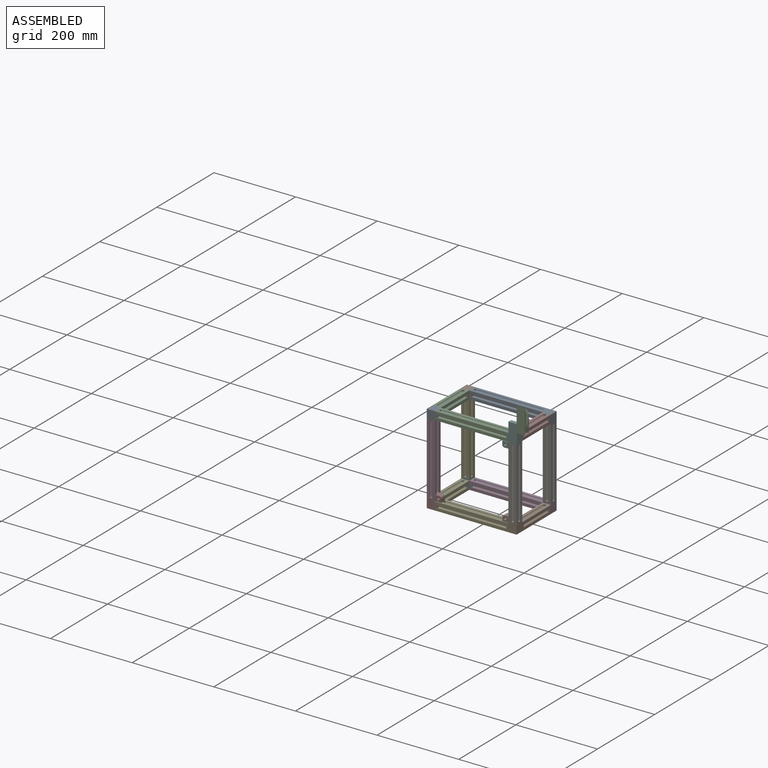
[diagram: assembled view]
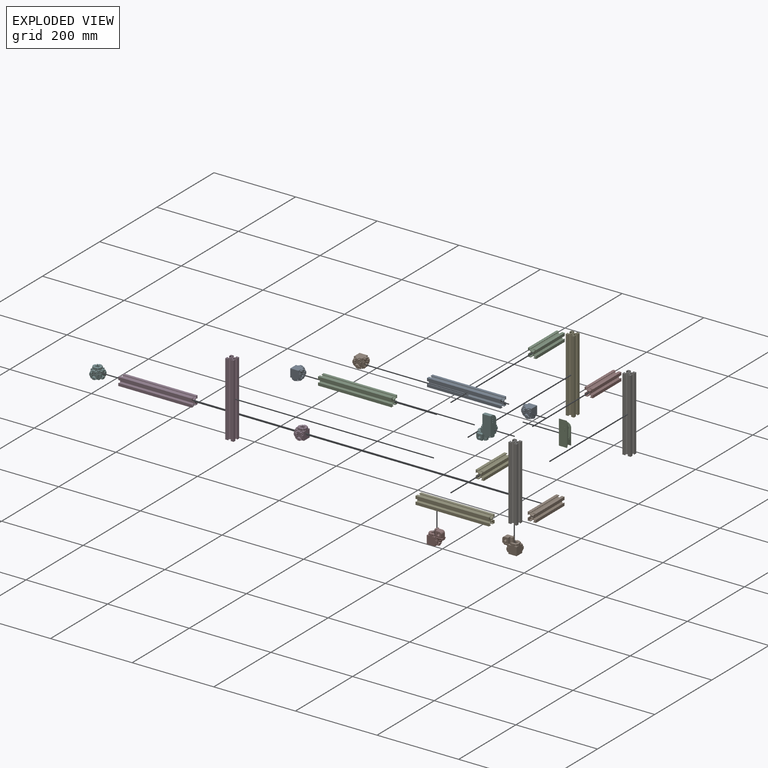
[diagram: exploded view]
GUIDED TOUR — MATED ASSEMBLY WITH SUBASSEMBLIES (Onshape document 5849f3f1650a1f40a9df41c4, AutoMate assembly 5849f3f1650a1f40a9df41c4_9b9f83bd9ccc5ef26c522021_66006c5635cd6fd07002afb1_default)

This assembly has 24 component occurrences arranged in 21 top-level units: 20 individual components plus 1 subassembly (S0). The tour has two levels: first the top level, where each subassembly is treated as one rigid unit; then each subassembly is toured internally in its own section (nesting deeper than one subassembly level is flattened into its subassembly's section).

Components are labeled P0..P23 across the whole record; subassembly units are labeled S0..S0. A mate is a constraint between two units; its type names the relative motion it leaves free:
  FASTENED — locks the two components together rigidly (no relative motion).
Axis/direction vectors are unit vectors and 'through' points are millimeter coordinates, both in the assembly's world frame.

TOP-LEVEL MATES (between units; each subassembly's internal mates are listed in its own section)
  1. FASTENED "Fastened 3": P4 <-> P7, direction (-1.000, 0.000, 0.000) through (-31.31, -10.00, -54.85) mm
  2. FASTENED "Fastened 9": P15 <-> P16, direction (0.000, -1.000, 0.000) through (-31.31, 110.00, 125.15) mm
  3. FASTENED "Fastened 15": P9 <-> P21, direction (1.000, 0.000, 0.000) through (-211.31, -10.00, 145.15) mm
  4. FASTENED "Fastened 11": P17 <-> P16, direction (0.000, -1.000, 0.000) through (-31.31, 110.00, 145.15) mm
  5. FASTENED "Fastened 4": P1 <-> P4, direction (0.000, -1.000, 0.000) through (-31.31, 10.00, -54.85) mm
  6. FASTENED "Fastened 12": P5 <-> P7, direction (0.000, 0.000, -1.000) through (-11.31, 10.00, 125.15) mm
  7. FASTENED "Fastened 17": P3 <-> P22, direction (-1.000, 0.000, 0.000) through (-31.31, 130.00, -74.85) mm
  8. FASTENED "Fastened 19": P18 <-> P17, direction (1.000, 0.000, 0.000) through (-211.31, 130.00, 145.15) mm
  9. FASTENED "Fastened 14": P8 <-> P12, direction (0.000, 0.000, 1.000) through (-231.31, -10.00, -54.85) mm
  10. FASTENED "Fastened 2": P21 <-> P12, direction (1.000, 0.000, 0.000) through (-211.31, -10.00, 125.15) mm
  11. FASTENED "Fastened 7": P4 <-> P23, direction (0.000, 1.000, 0.000) through (-211.31, 10.00, -54.85) mm
  12. FASTENED "Fastened 10": P22 <-> P23, direction (0.000, -1.000, 0.000) through (-211.31, 110.00, -74.85) mm
  13. FASTENED "Fastened 16": S0 <-> P5, direction (1.000, 0.000, 0.000) through (-11.31, -2.50, 167.65) mm
  14. FASTENED "Fastened 6": P11 <-> P21, direction (0.000, -1.000, 0.000) through (-211.31, 10.00, 125.15) mm
  15. FASTENED "Fastened 20": P0 <-> P17, direction (-1.000, 0.000, 0.000) through (-31.31, 130.00, 145.15) mm
  16. FASTENED "Fastened 18": P14 <-> P22, direction (1.000, 0.000, 0.000) through (-211.31, 130.00, -74.85) mm
  17. FASTENED "Fastened 8": P13 <-> P11, direction (0.000, -1.000, 0.000) through (-211.31, 110.00, 125.15) mm
  18. FASTENED "Fastened 1": P21 <-> P7, direction (1.000, 0.000, 0.000) through (-31.31, -10.00, 125.15) mm
  19. FASTENED "Fastened 5": P16 <-> P7, direction (0.000, -1.000, 0.000) through (-31.31, 10.00, 125.15) mm
  20. FASTENED "Fastened 13": P10 <-> P7, direction (0.000, 0.000, 1.000) through (-11.31, -10.00, -54.85) mm

TOP-LEVEL ASSEMBLY ORDER
  1. P7 — the base component [order heuristic]
  2. P4 — core [order heuristic]
  3. P0 — core [order heuristic]
  4. P10 — core [order heuristic]
  5. P16 — core [order heuristic]
  6. P5 — core [order heuristic]
  7. P1 — core [order heuristic]
  8. P17 — core [order heuristic]
  9. P11 — core [order heuristic]
  10. P21 — core [order heuristic]
  11. P15 — core [order heuristic]
  12. P9 — core [order heuristic]
  13. P23 — core [order heuristic]
  14. P18 — core [order heuristic]
  15. P8 — core [order heuristic]
  16. P13 — core [order heuristic]
  17. P12 — core [order heuristic]
  18. P22 — core [order heuristic]
  19. P14 — core [order heuristic]
  20. P3 — core [order heuristic]
  21. S0 [order verified]
Order-tag legend:
  [order verified] — this step's position reverses a verified removal order: the component was checked to insert without passing through the ones already placed.
  [order heuristic] — the first 20 components form the assembly's core: parts whose collision-free extraction could not be verified, listed in mate-graph order.

Of the 24 component occurrences, 15 carry the full construction recipe — the FeatureScript program that regenerates the part's solid from scratch; the rest are supplied as boundary geometry only. Each toured unit is shown spotlighted twice — assembled, then exploded with a leader line back to its socket (green = recipe-attached component, orange = geometry-only, blue = subassembly unit; the rest desaturated gray).
NOTE — document 2 of 2 of this assembly tour. The two overview renders and the header above are repeated from document 1; the component sections below continue where the previous document stopped.
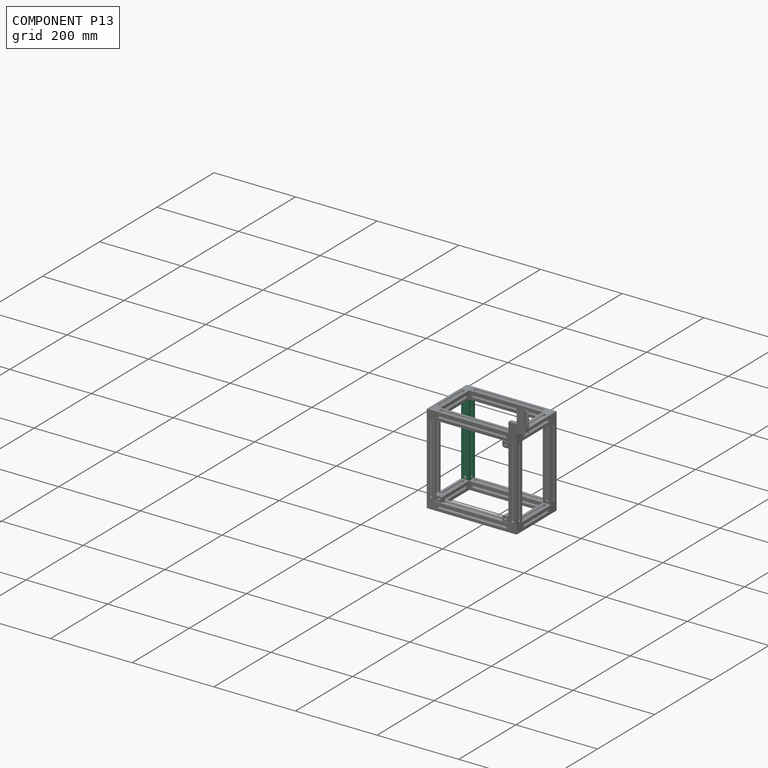
[diagram: component P13 — assembled]
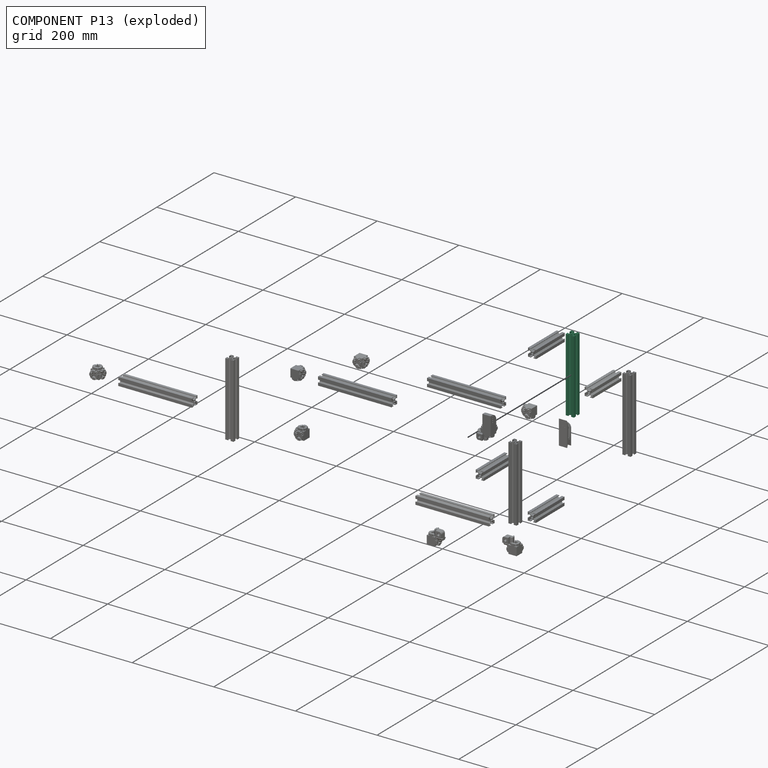
[diagram: component P13 — exploded]
COMPONENT P13 — same part as P4 (CADFS 00642222); its construction recipe is shown at P4.
Held by: FASTENED mate "Fastened 8" to P11.
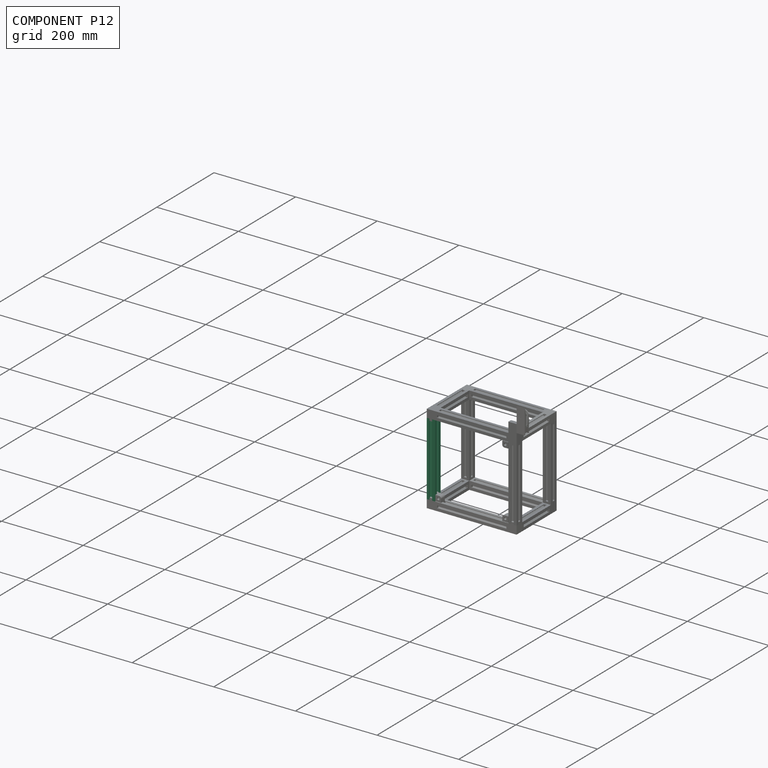
[diagram: component P12 — assembled]
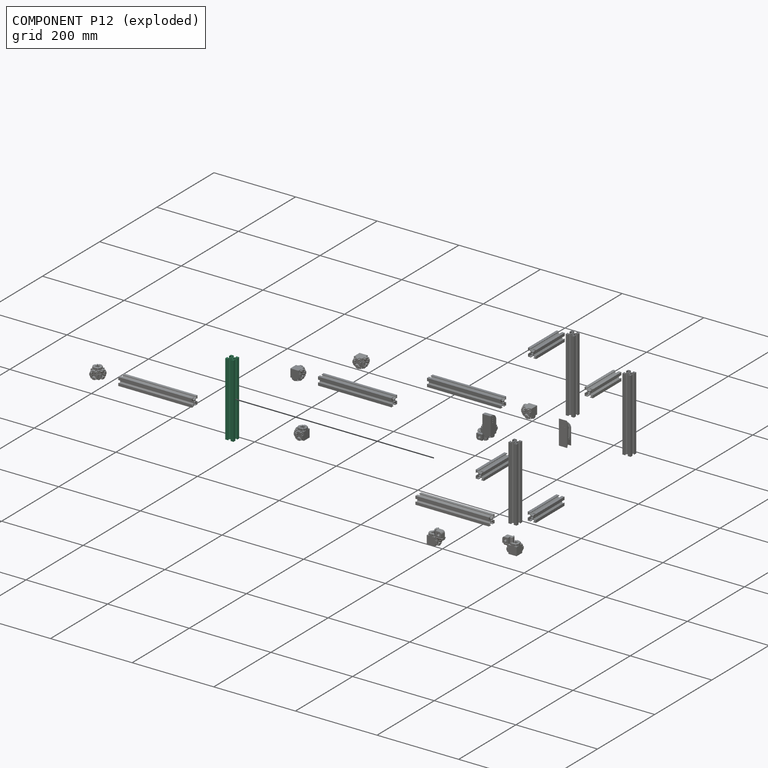
[diagram: component P12 — exploded]
COMPONENT P12 — same part as P4 (CADFS 00642222); its construction recipe is shown at P4.
Held by: FASTENED mate "Fastened 14" to P8; FASTENED mate "Fastened 2" to P21.
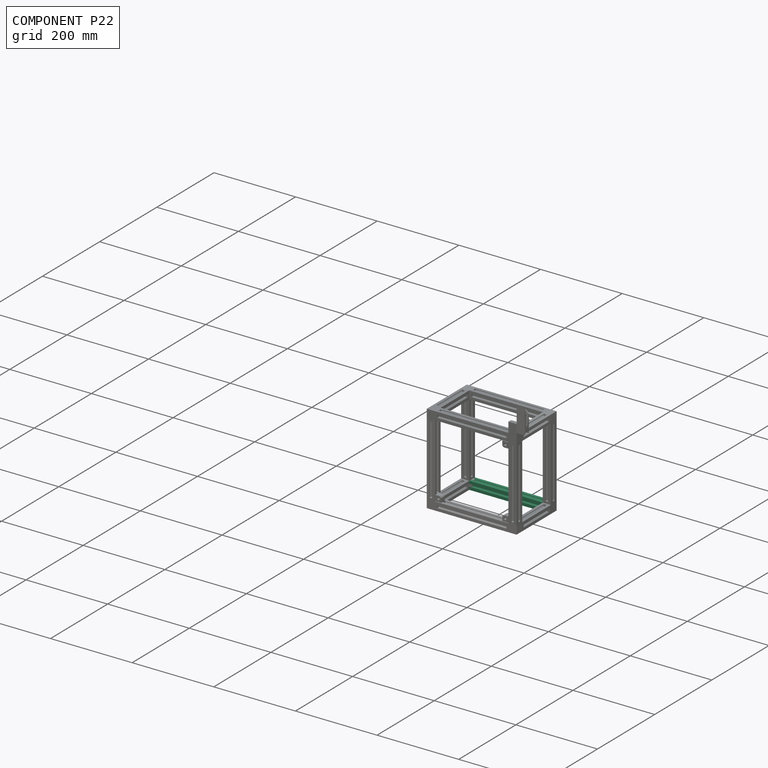
[diagram: component P22 — assembled]
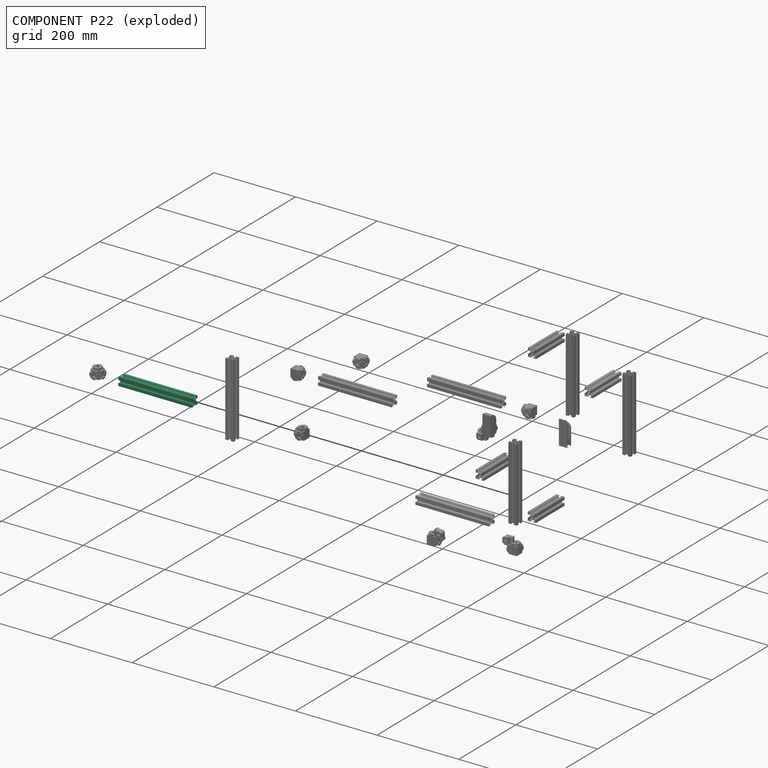
[diagram: component P22 — exploded]
COMPONENT P22 — same part as P4 (CADFS 00642222); its construction recipe is shown at P4.
Held by: FASTENED mate "Fastened 17" to P3; FASTENED mate "Fastened 10" to P23; FASTENED mate "Fastened 18" to P14.
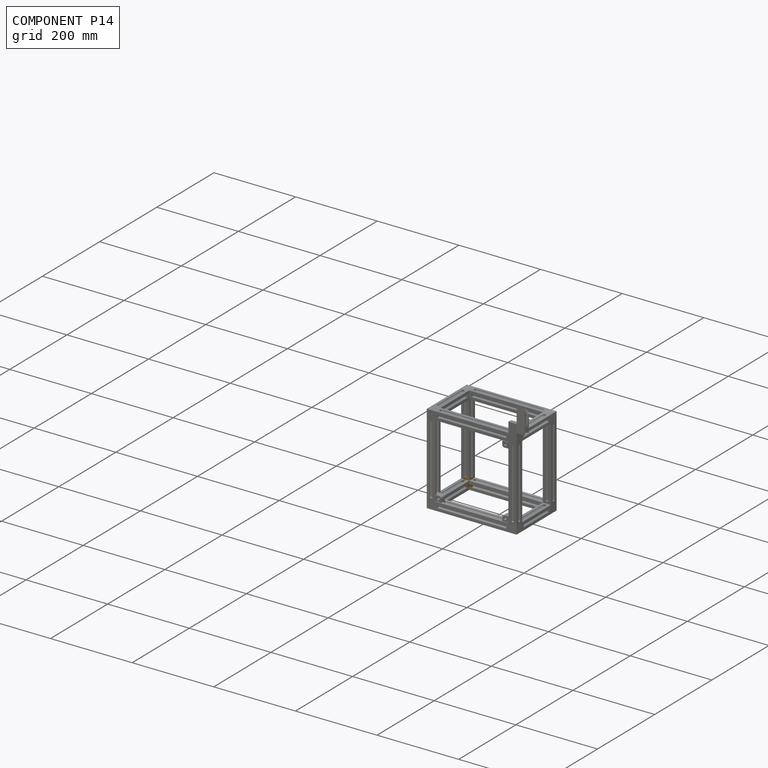
[diagram: component P14 — assembled]
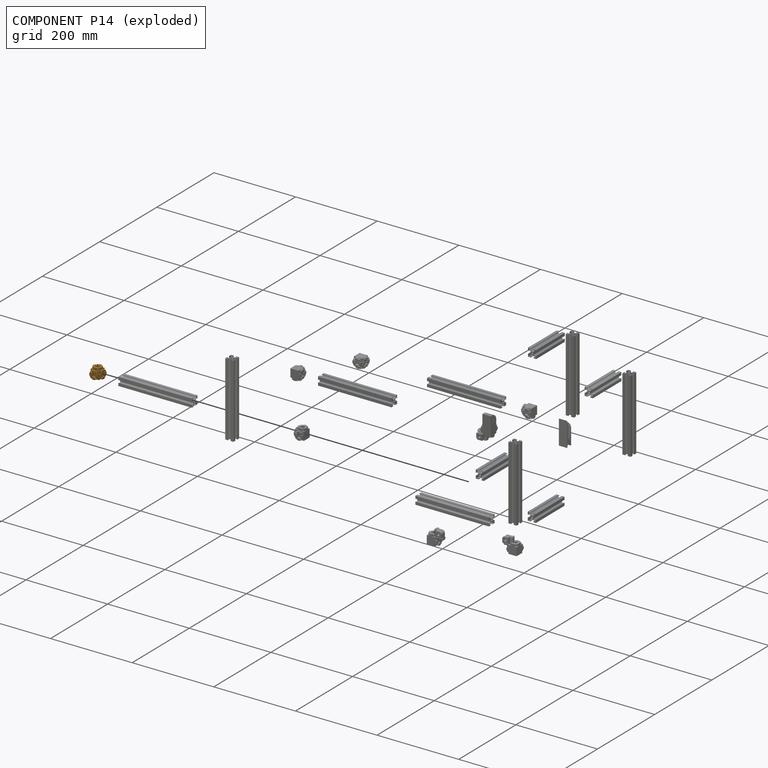
[diagram: component P14 — exploded]
COMPONENT P14 — geometry summary (no construction recipe available for this part):
  bounding box: 25.0 x 25.0 x 25.0 mm
  B-rep topology: 1 solid, 291 faces, 1420 edges
  volume: 11254 mm^3 (72% of its bounding box)
Held by: FASTENED mate "Fastened 18" to P22.
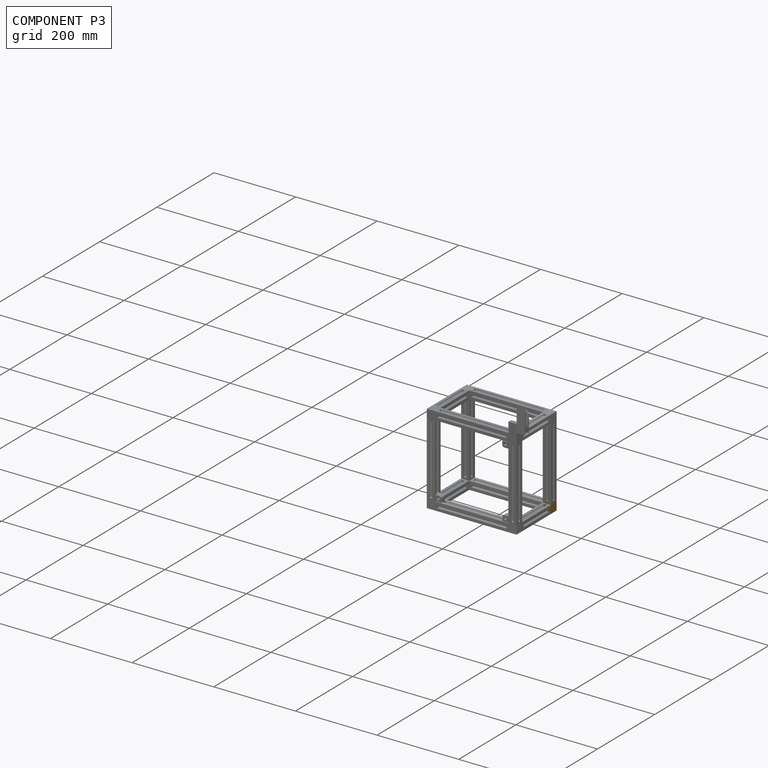
[diagram: component P3 — assembled]
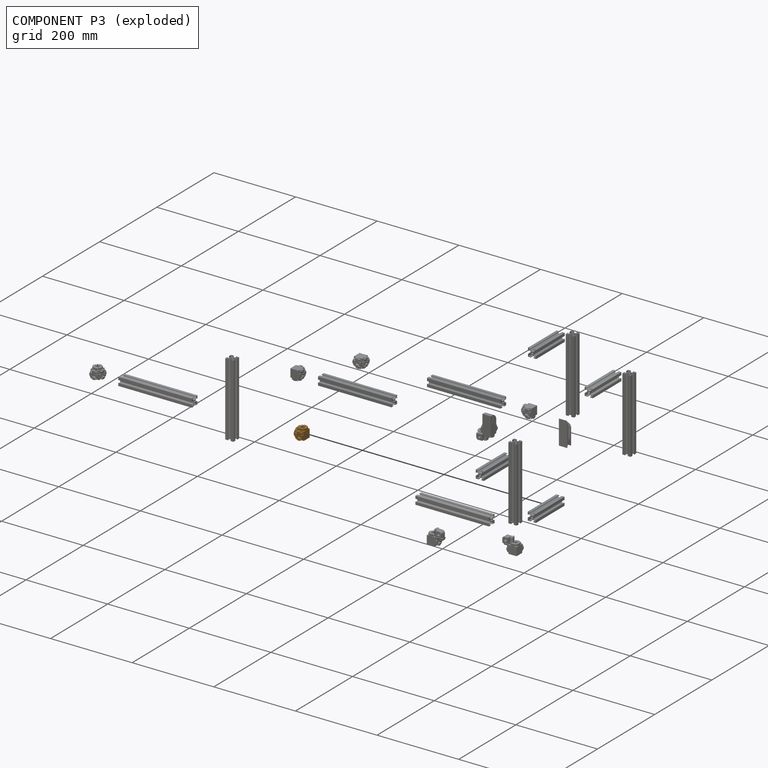
[diagram: component P3 — exploded]
COMPONENT P3 — geometry summary (no construction recipe available for this part):
  bounding box: 25.0 x 25.0 x 25.0 mm
  B-rep topology: 1 solid, 291 faces, 1420 edges
  volume: 11254 mm^3 (72% of its bounding box)
Held by: FASTENED mate "Fastened 17" to P22.
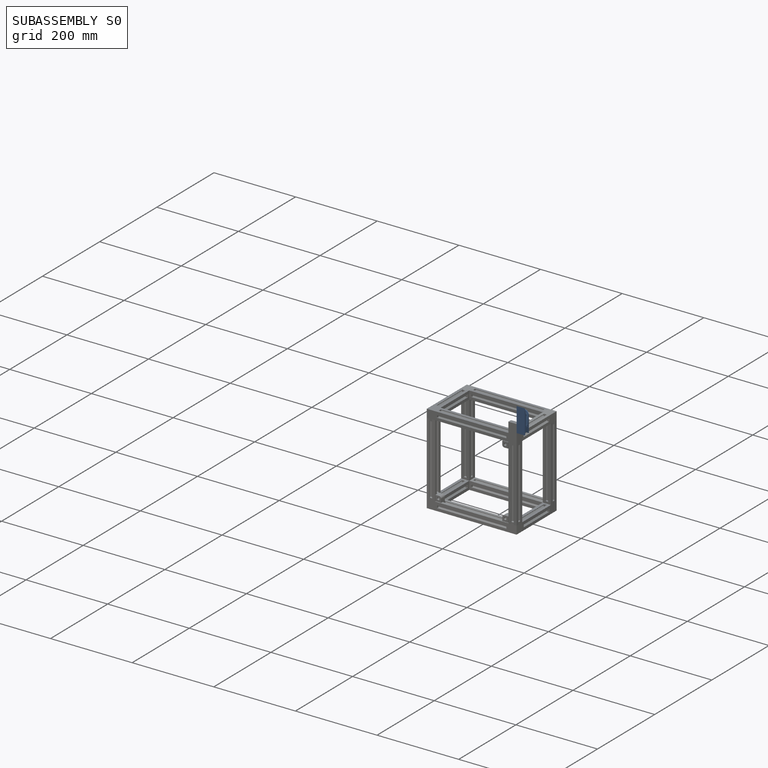
[diagram: subassembly S0 — assembled]
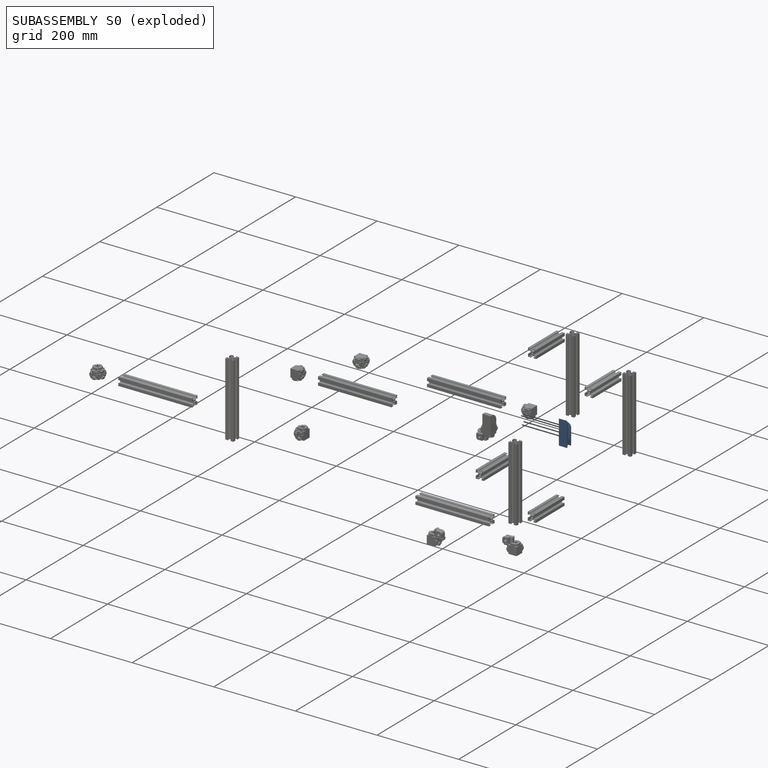
[diagram: subassembly S0 — exploded]
SUBASSEMBLY S0 — 4 components (P2, P6, P19, P20), of which 3 recipe-attached; toured below.
Held by: FASTENED mate "Fastened 16" to P5.
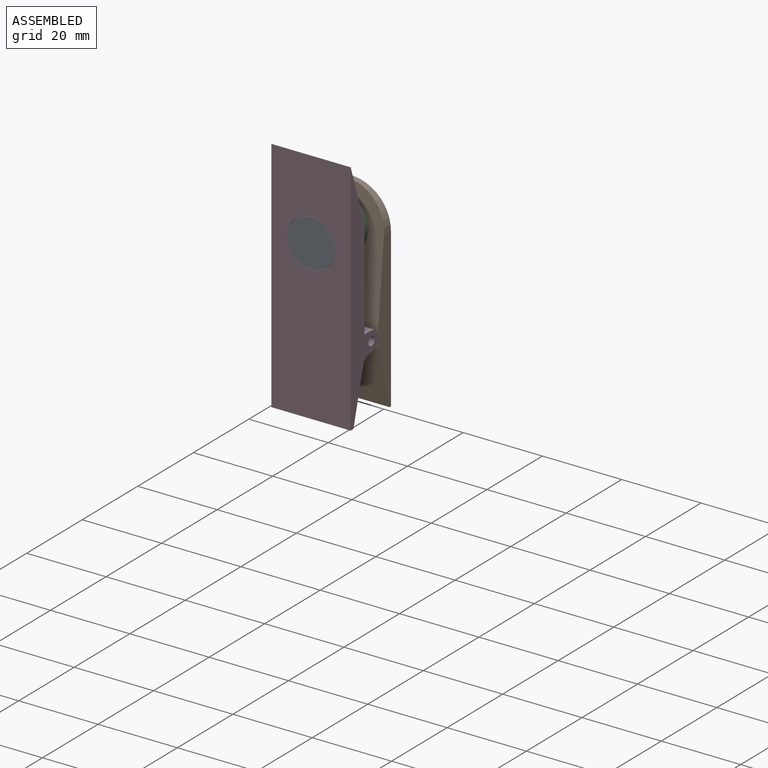
[diagram: subassembly S0 — assembled view]
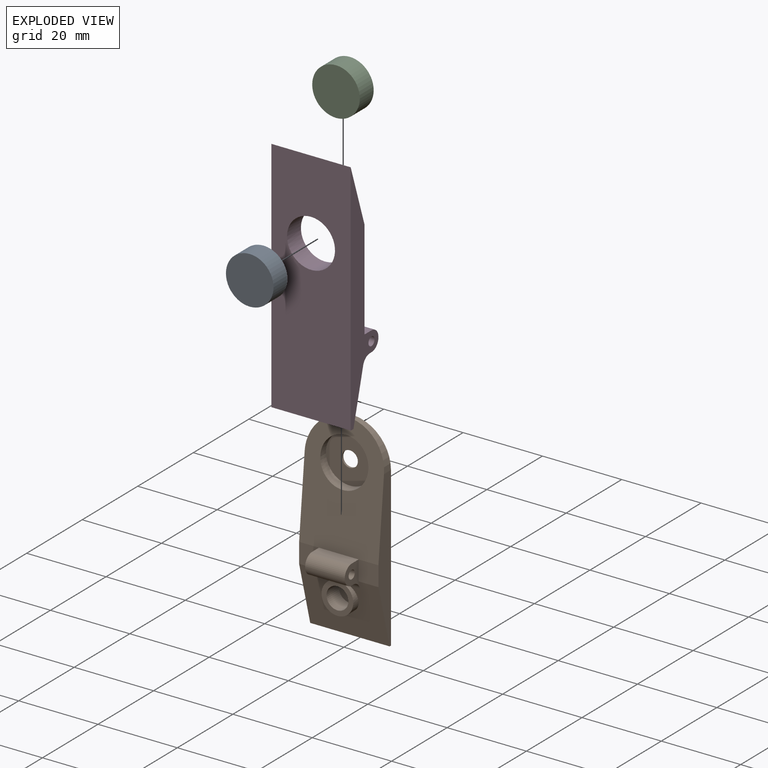
[diagram: subassembly S0 — exploded view]
SUBASSEMBLY S0 TOUR — 4 components, shown here in isolation at its own camera.

INTERNAL MATES
  1. FASTENED "Fastened 2": P19 <-> P6, direction (0.000, 1.000, 0.000) through (-1.31, 4.00, 190.15) mm
  2. FASTENED "Fastened 1": P2 <-> P20, direction (0.000, -1.000, 0.000) through (-1.31, -10.00, 190.15) mm
  3. FASTENED "Fastened 2": P19 <-> P6, direction (0.000, 1.000, 0.000) through (-1.31, 4.00, 190.15) mm
  4. FASTENED "Fastened 1": P2 <-> P20, direction (0.000, -1.000, 0.000) through (-1.31, -10.00, 190.15) mm

ASSEMBLY ORDER (within the subassembly)
  1. P20 — the base component [order verified]
  2. P6 [order verified]
  3. P19 [order verified]
  4. P2 [order verified]
(P19 verified with a relaxed clearance tolerance: the source model stores slight part interference there.)
Order-tag legend:
  [order verified] — this step's position reverses a verified removal order: the component was checked to insert without passing through the ones already placed.
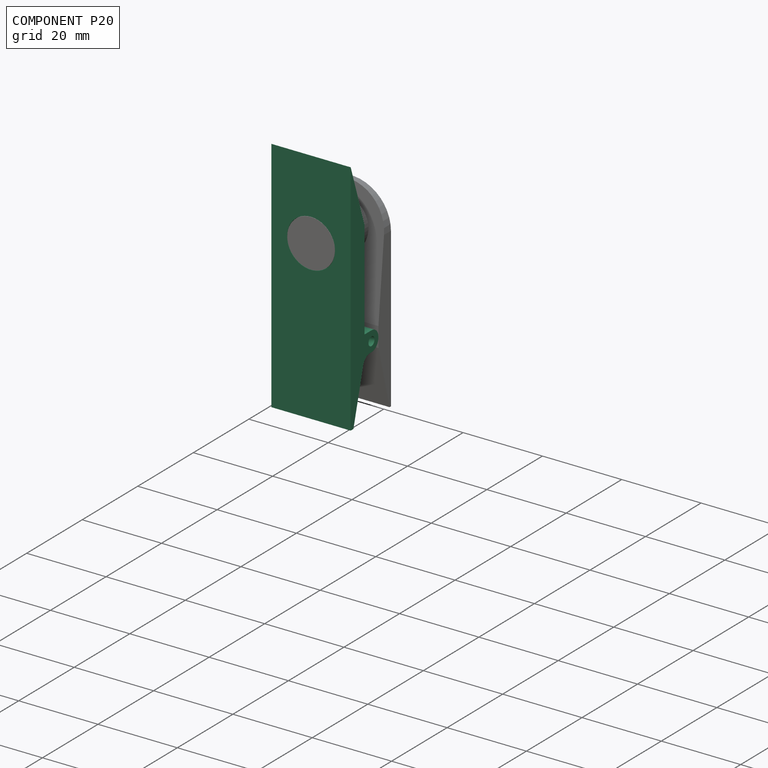
[diagram: component P20 — assembled]
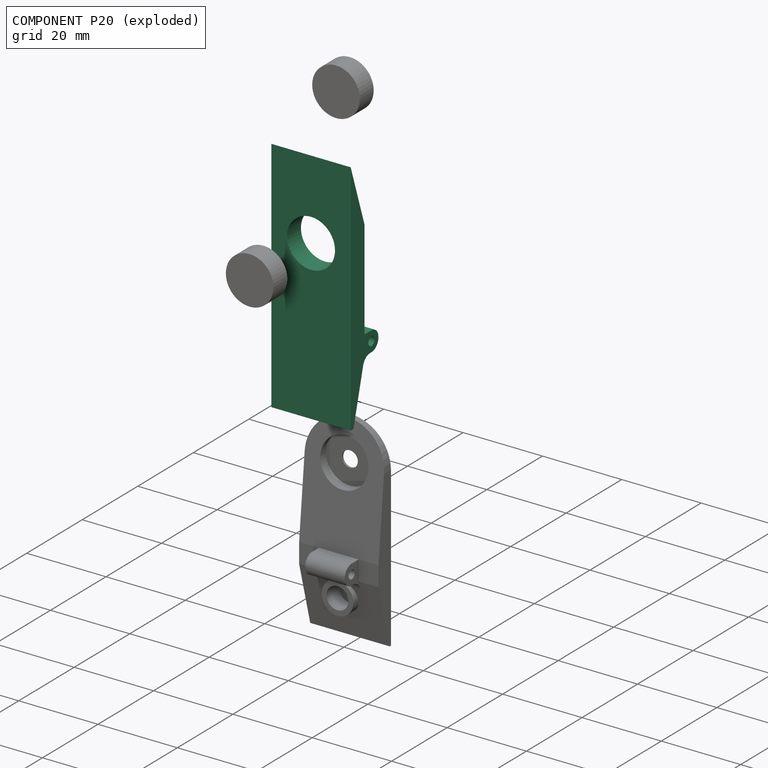
[diagram: component P20 — exploded]
COMPONENT P20 — recipe-attached (CADFS 00642240, mesh-verified: the recipe's output STEP matches this component's geometry to below the mesh-comparison resolution (tessellation chordal tolerance ~0.096 mm)).
Held by: FASTENED mate "Fastened 1" to P2; FASTENED mate "Fastened 1" to P2.
Construction recipe (FeatureScript — the CAD program that rebuilds this solid; sketch coordinates are in the units given by the * unit suffixes, e.g. mm):

FeatureScript 1511;
import(path : "onshape/std/geometry.fs", version : "1511.0");
import(path : "onshape/std/common.fs", version : "1511.0");
const mm = millimeter;
const VERTEX = EntityType.VERTEX;
const EDGE = EntityType.EDGE;
const FACE = EntityType.FACE;
const BODY = EntityType.BODY;
function v(x, y){return vector(x, y);}
function OD(order){return orderDisambiguation(order);}
function OSD(set){return originalSetDisambiguation(set);}
function TD(topology){return topologyDisambiguation(topology);}
function TDD(query){return trueDependencyDisambiguation(query);}
function sQuery(a, b, c) {return sketchEntityQuery(a, b, c);}

annotation { "Feature Type Name" : "Feature", "Feature Type Description" : "" }
export const myFeature = defineFeature(function(context is Context, id is Id, definition is map)
    precondition{}
    {
        {
            var Q0;
            Q0=qCreatedBy(makeId("Top.planeOp"),FACE);
            var sketch = newSketch(context, id + "F0", { "sketchPlane" : qUnion([Q0])});
            skLineSegment(sketch, "E0.bottom", {"start": v(0, 0) * mm, "end": v(20, 0) * mm});
            skLineSegment(sketch, "E0.top", {"start": v(0, 60) * mm, "end": v(20, 60) * mm});
            skLineSegment(sketch, "E0.left", {"start": v(0, 0) * mm, "end": v(0, 60) * mm});
            skLineSegment(sketch, "E0.right", {"start": v(20, 0) * mm, "end": v(20, 60) * mm});
            skCircle(sketch, "E1", {"center": v(10, 40) * mm, "radius": 6.05 * mm});
            skCircle(sketch, "E2", {"center": v(10, 10) * mm, "radius": 2.75 * mm});
            skCircle(sketch, "E3", {"center": v(10, 40) * mm, "radius": 2 * mm});
            skCircle(sketch, "E4", {"center": v(10, 10) * mm, "radius": 4 * mm});
            skSolve(sketch);
        }
        {
            var Q0;
            Q0=makeQuery(id+"F0.imprint","IMPRINT",FACE,{"disambiguationData":[TD([[makeQuery(id+"F0.imprint","IMPRINT",EDGE,{"derivedFrom":sQuery(id+"F0.wireOp",EDGE,"E0.bottom")}),1.0]])]});
            extrude(context, id + "F1", {"entities" : qUnion([Q0]), "depth" : 4 * mm, "offsetDistance" : 25 * mm});
        }
        {
            var Q0;
            Q0=makeQuery(id+"F1.opExtrude","CAP_FACE",FACE,{"disambiguationData":[OSD([sQuery(id+"F0.wireOp",EDGE,"E0.bottom"),sQuery(id+"F0.wireOp",EDGE,"E0.top"),sQuery(id+"F0.wireOp",EDGE,"E0.left"),sQuery(id+"F0.wireOp",EDGE,"E0.right"),sQuery(id+"F0.wireOp",EDGE,"E1")])],"isStart":false});
            var Q1;
            Q1=makeQuery(id+"F0.imprint","IMPRINT",FACE,{"disambiguationData":[TD([[makeQuery(id+"F0.imprint","IMPRINT",EDGE,{"derivedFrom":sQuery(id+"F0.wireOp",EDGE,"E2")}),-1.0]])]});
            extrude(context, id + "F2", {"entities" : qUnion([Q0, Q1]), "operationType" : NewBodyOperationType.ADD, "depth" : 1 * mm, "offsetDistance" : 25 * mm});
        }
        {
            var Q0;
            Q0=makeQuery(id+"F2.opExtrude","CAP_FACE",FACE,{"disambiguationData":[OSD([sQuery(id+"F0.wireOp",EDGE,"E0.bottom"),sQuery(id+"F0.wireOp",EDGE,"E0.top"),sQuery(id+"F0.wireOp",EDGE,"E0.left"),sQuery(id+"F0.wireOp",EDGE,"E0.right"),sQuery(id+"F0.wireOp",EDGE,"E1")])],"isStart":false});
            var sketch = newSketch(context, id + "F3", { "sketchPlane" : qUnion([Q0])});
            skLineSegment(sketch, "E5.bottom", {"start": v(0, 15) * mm, "end": v(20, 15) * mm});
            skLineSegment(sketch, "E5.top", {"start": v(0, 20) * mm, "end": v(20, 20) * mm});
            skLineSegment(sketch, "E5.left", {"start": v(0, 15) * mm, "end": v(0, 20) * mm});
            skLineSegment(sketch, "E5.right", {"start": v(20, 15) * mm, "end": v(20, 20) * mm});
            skLineSegment(sketch, "E6.bottom", {"start": v(5, 20) * mm, "end": v(15, 20) * mm});
            skLineSegment(sketch, "E6.top", {"start": v(5, 15) * mm, "end": v(15, 15) * mm});
            skLineSegment(sketch, "E6.left", {"start": v(5, 20) * mm, "end": v(5, 15) * mm});
            skLineSegment(sketch, "E6.right", {"start": v(15, 20) * mm, "end": v(15, 15) * mm});
            skSolve(sketch);
        }
        {
            var Q0;
            {var subQ0=sQuery(id+"F3.wireOp",EDGE,"E5.left");Q0=makeQuery(id+"F3.imprint","IMPRINT",FACE,{"disambiguationData":[TD([[makeQuery(id+"F3.imprint","IMPRINT",EDGE,{"derivedFrom":subQ0}),-1.0]])]});}
            var Q1;
            {var subQ0=sQuery(id+"F3.wireOp",EDGE,"E5.right");Q1=makeQuery(id+"F3.imprint","IMPRINT",FACE,{"disambiguationData":[TD([[makeQuery(id+"F3.imprint","IMPRINT",EDGE,{"derivedFrom":subQ0}),1.0]])]});}
            extrude(context, id + "F4", {"entities" : qUnion([Q0, Q1]), "operationType" : NewBodyOperationType.ADD, "depth" : 5 * mm, "offsetDistance" : 25 * mm});
        }
        {
            var Q0;
            Q0=makeQuery(id+"F2.opExtrude","CAP_EDGE",EDGE,{"disambiguationData":[OSD([sQuery(id+"F0.wireOp",EDGE,"E0.bottom")])],"isStart":false});
            chamfer(context, id + "F5", {"entities" : qUnion([Q0]), "chamferType" : ChamferType.TWO_OFFSETS, "width1" : 15 * mm, "oppositeDirection" : false, "width2" : 4 * mm, "tangentPropagation" : true});
        }
        {
            var Q0;
            {var subQ0=sQuery(id+"F3.wireOp",EDGE,"E5.bottom");Q0=makeQuery(id+"F5.opChamfer","BLEND_EDGE",EDGE,{"blendedFrom":[makeQuery(id+"F2.opExtrude","CAP_EDGE",EDGE,{"disambiguationData":[OSD([sQuery(id+"F0.wireOp",EDGE,"E0.bottom")])],"isStart":false}),makeQuery(id+"F4.opExtrude","SWEPT_FACE",FACE,{"disambiguationData":[OSD([subQ0]),TDD([makeQuery(id+"F3.imprint","IMPRINT",EDGE,{"disambiguationData":[TD([[makeQuery(id+"F3.imprint","INTERSECT",VERTEX,{"derivedFrom":[makeQuery(id+"F2.opExtrude","CAP_EDGE",EDGE,{"disambiguationData":[OSD([sQuery(id+"F0.wireOp",EDGE,"E0.left")])],"isStart":false}),subQ0,sQuery(id+"F3.wireOp",EDGE,"E5.left")]}),-1.0]])],"derivedFrom":subQ0})])]})],"blendedInto":[makeQuery(id+"F4.opExtrude","SWEPT_FACE",FACE,{"disambiguationData":[OSD([subQ0]),TDD([makeQuery(id+"F3.imprint","IMPRINT",EDGE,{"disambiguationData":[TD([[makeQuery(id+"F3.imprint","INTERSECT",VERTEX,{"derivedFrom":[makeQuery(id+"F2.opExtrude","CAP_EDGE",EDGE,{"disambiguationData":[OSD([sQuery(id+"F0.wireOp",EDGE,"E0.left")])],"isStart":false}),subQ0,sQuery(id+"F3.wireOp",EDGE,"E5.left")]}),-1.0]])],"derivedFrom":subQ0})])]})]});}
            var Q1;
            {var subQ0=sQuery(id+"F3.wireOp",EDGE,"E5.bottom");Q1=makeQuery(id+"F4.opExtrude","CAP_EDGE",EDGE,{"disambiguationData":[OSD([subQ0]),TDD([makeQuery(id+"F3.imprint","IMPRINT",EDGE,{"disambiguationData":[TD([[makeQuery(id+"F3.imprint","INTERSECT",VERTEX,{"derivedFrom":[makeQuery(id+"F2.opExtrude","CAP_EDGE",EDGE,{"disambiguationData":[OSD([sQuery(id+"F0.wireOp",EDGE,"E0.left")])],"isStart":false}),subQ0,sQuery(id+"F3.wireOp",EDGE,"E5.left")]}),-1.0]])],"derivedFrom":subQ0})])],"isStart":false});}
            var Q2;
            {var subQ0=sQuery(id+"F3.wireOp",EDGE,"E5.bottom");Q2=makeQuery(id+"F5.opChamfer","BLEND_EDGE",EDGE,{"blendedFrom":[makeQuery(id+"F2.opExtrude","CAP_EDGE",EDGE,{"disambiguationData":[OSD([sQuery(id+"F0.wireOp",EDGE,"E0.bottom")])],"isStart":false}),makeQuery(id+"F4.opExtrude","SWEPT_FACE",FACE,{"disambiguationData":[OSD([subQ0]),TDD([makeQuery(id+"F3.imprint","IMPRINT",EDGE,{"disambiguationData":[TD([[makeQuery(id+"F3.imprint","INTERSECT",VERTEX,{"derivedFrom":[makeQuery(id+"F2.opExtrude","CAP_EDGE",EDGE,{"disambiguationData":[OSD([sQuery(id+"F0.wireOp",EDGE,"E0.right")])],"isStart":false}),subQ0,sQuery(id+"F3.wireOp",EDGE,"E5.right")]}),1.0]])],"derivedFrom":subQ0})])]})],"blendedInto":[makeQuery(id+"F4.opExtrude","SWEPT_FACE",FACE,{"disambiguationData":[OSD([subQ0]),TDD([makeQuery(id+"F3.imprint","IMPRINT",EDGE,{"disambiguationData":[TD([[makeQuery(id+"F3.imprint","INTERSECT",VERTEX,{"derivedFrom":[makeQuery(id+"F2.opExtrude","CAP_EDGE",EDGE,{"disambiguationData":[OSD([sQuery(id+"F0.wireOp",EDGE,"E0.right")])],"isStart":false}),subQ0,sQuery(id+"F3.wireOp",EDGE,"E5.right")]}),1.0]])],"derivedFrom":subQ0})])]})]});}
            var Q3;
            {var subQ0=sQuery(id+"F3.wireOp",EDGE,"E5.bottom");Q3=makeQuery(id+"F4.opExtrude","CAP_EDGE",EDGE,{"disambiguationData":[OSD([subQ0]),TDD([makeQuery(id+"F3.imprint","IMPRINT",EDGE,{"disambiguationData":[TD([[makeQuery(id+"F3.imprint","INTERSECT",VERTEX,{"derivedFrom":[makeQuery(id+"F2.opExtrude","CAP_EDGE",EDGE,{"disambiguationData":[OSD([sQuery(id+"F0.wireOp",EDGE,"E0.right")])],"isStart":false}),subQ0,sQuery(id+"F3.wireOp",EDGE,"E5.right")]}),1.0]])],"derivedFrom":subQ0})])],"isStart":false});}
            var Q4;
            {var subQ0=sQuery(id+"F3.wireOp",EDGE,"E5.top");Q4=makeQuery(id+"F4.opExtrude","CAP_EDGE",EDGE,{"disambiguationData":[OSD([subQ0]),TDD([makeQuery(id+"F3.imprint","IMPRINT",EDGE,{"disambiguationData":[TD([[makeQuery(id+"F3.imprint","INTERSECT",VERTEX,{"derivedFrom":[makeQuery(id+"F2.opExtrude","CAP_EDGE",EDGE,{"disambiguationData":[OSD([sQuery(id+"F0.wireOp",EDGE,"E0.left")])],"isStart":false}),subQ0,sQuery(id+"F3.wireOp",EDGE,"E5.left")]}),-1.0]])],"derivedFrom":subQ0})])],"isStart":false});}
            var Q5;
            {var subQ0=sQuery(id+"F3.wireOp",EDGE,"E5.top");Q5=makeQuery(id+"F4.opExtrude","CAP_EDGE",EDGE,{"disambiguationData":[OSD([subQ0]),TDD([makeQuery(id+"F3.imprint","IMPRINT",EDGE,{"disambiguationData":[TD([[makeQuery(id+"F3.imprint","INTERSECT",VERTEX,{"derivedFrom":[makeQuery(id+"F2.opExtrude","CAP_EDGE",EDGE,{"disambiguationData":[OSD([sQuery(id+"F0.wireOp",EDGE,"E0.right")])],"isStart":false}),subQ0,sQuery(id+"F3.wireOp",EDGE,"E5.right")]}),1.0]])],"derivedFrom":subQ0})])],"isStart":false});}
            fillet(context, id + "F6", {"entities" : qUnion([Q0, Q1, Q2, Q3, Q4, Q5]), "radius" : 2.5 * mm, "tangentPropagation" : true, "allowEdgeOverflow" : false});
        }
        {
            var Q0;
            {var subQ0=sQuery(id+"F0.wireOp",EDGE,"E0.left");Q0=makeQuery(id+"F4.boolean.opBoolean","MERGE",FACE,{"derivedFrom":[makeQuery(id+"F2.boolean.opBoolean","MERGE",FACE,{"derivedFrom":[makeQuery(id+"F1.opExtrude","SWEPT_FACE",FACE,{"disambiguationData":[OSD([subQ0])]}),makeQuery(id+"F2.opExtrude","SWEPT_FACE",FACE,{"disambiguationData":[OSD([subQ0])]})]}),makeQuery(id+"F4.opExtrude","SWEPT_FACE",FACE,{"disambiguationData":[OSD([sQuery(id+"F3.wireOp",EDGE,"E5.left")])]})]});}
            var sketch = newSketch(context, id + "F7", { "sketchPlane" : qUnion([Q0])});
            skCircle(sketch, "E7", {"center": v(-17.5, 7.5) * mm, "radius": 1.1 * mm});
            skSolve(sketch);
        }
        {
            var Q0;
            Q0=makeQuery(id+"F7.imprint","IMPRINT",FACE,{"disambiguationData":[TD([[makeQuery(id+"F7.imprint","IMPRINT",EDGE,{"derivedFrom":sQuery(id+"F7.wireOp",EDGE,"E7")}),1.0]])]});
            extrude(context, id + "F8", {"entities" : qUnion([Q0]), "operationType" : NewBodyOperationType.REMOVE, "oppositeDirection" : true, "depth" : 25 * mm, "offsetDistance" : 25 * mm});
        }
        {
            var Q0;
            Q0=makeQuery(id+"F0.imprint","IMPRINT",FACE,{"disambiguationData":[TD([[makeQuery(id+"F0.imprint","IMPRINT",EDGE,{"derivedFrom":sQuery(id+"F0.wireOp",EDGE,"E2")}),-1.0]])]});
            extrude(context, id + "F9", {"entities" : qUnion([Q0]), "depth" : 5 * mm, "offsetDistance" : 25 * mm});
        }
        {
            var Q0;
            Q0=makeQuery(id+"F2.opExtrude","CAP_EDGE",EDGE,{"disambiguationData":[OSD([sQuery(id+"F0.wireOp",EDGE,"E0.top")])],"isStart":false});
            chamfer(context, id + "F10", {"entities" : qUnion([Q0]), "chamferType" : ChamferType.TWO_OFFSETS, "width1" : 5 * mm, "oppositeDirection" : false, "width2" : 15 * mm, "tangentPropagation" : true});
        }
        {
            var Q0;
            Q0=makeQuery(id+"F0.imprint","IMPRINT",FACE,{"disambiguationData":[TD([[makeQuery(id+"F0.imprint","IMPRINT",EDGE,{"derivedFrom":sQuery(id+"F0.wireOp",EDGE,"E2")}),1.0]])]});
            extrude(context, id + "F11", {"entities" : qUnion([Q0]), "operationType" : NewBodyOperationType.ADD, "depth" : 2 * mm, "offsetDistance" : 25 * mm});
        }
    });
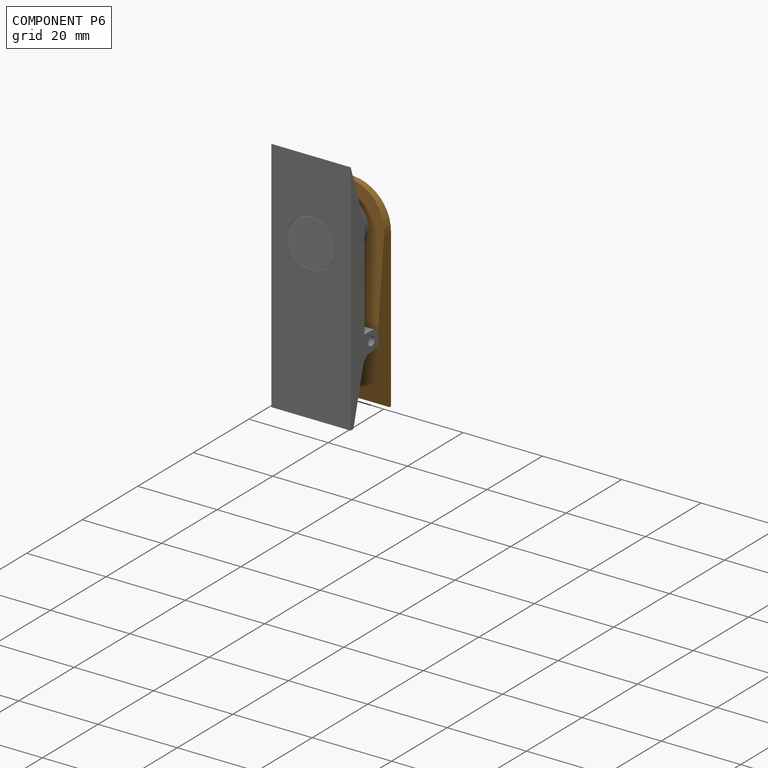
[diagram: component P6 — assembled]
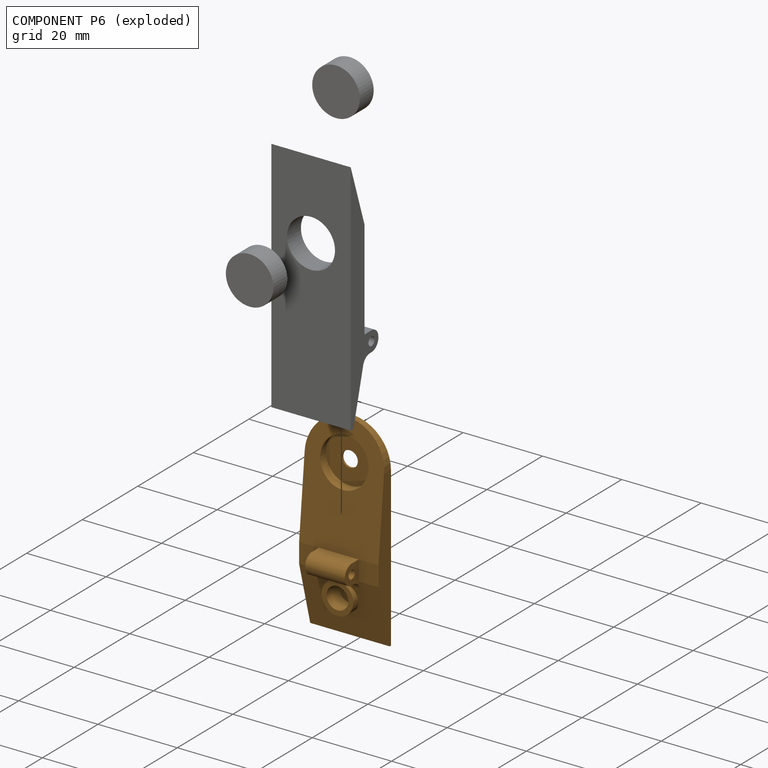
[diagram: component P6 — exploded]
COMPONENT P6 — geometry summary (no construction recipe available for this part):
  bounding box: 50.0 x 20.0 x 9.5 mm
  B-rep topology: 1 solid, 25 faces, 122 edges
  volume: 2867 mm^3 (30% of its bounding box)
  symmetry: mirror-symmetric across its x mid-plane
Held by: FASTENED mate "Fastened 2" to P19; FASTENED mate "Fastened 2" to P19.
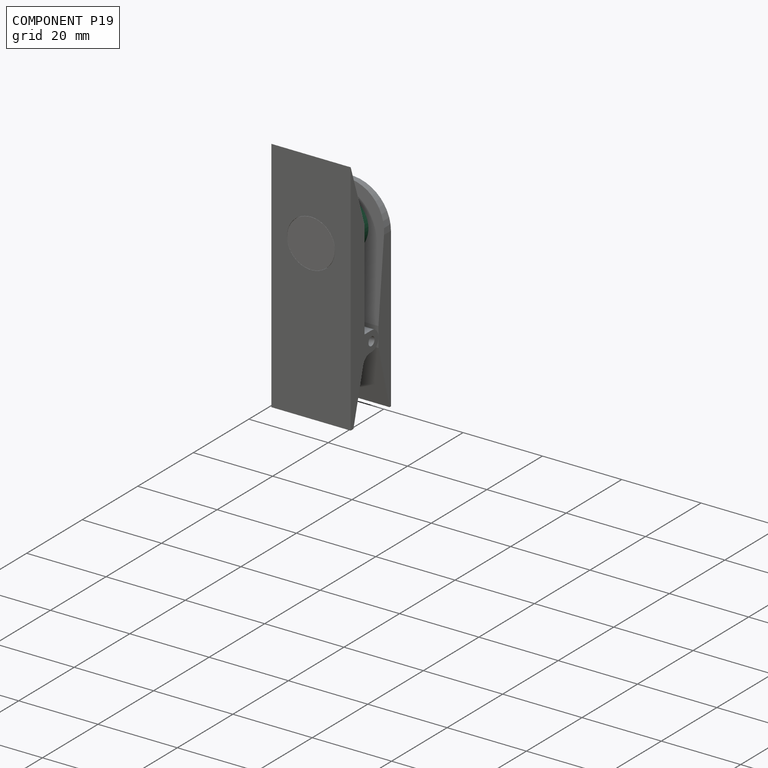
[diagram: component P19 — assembled]
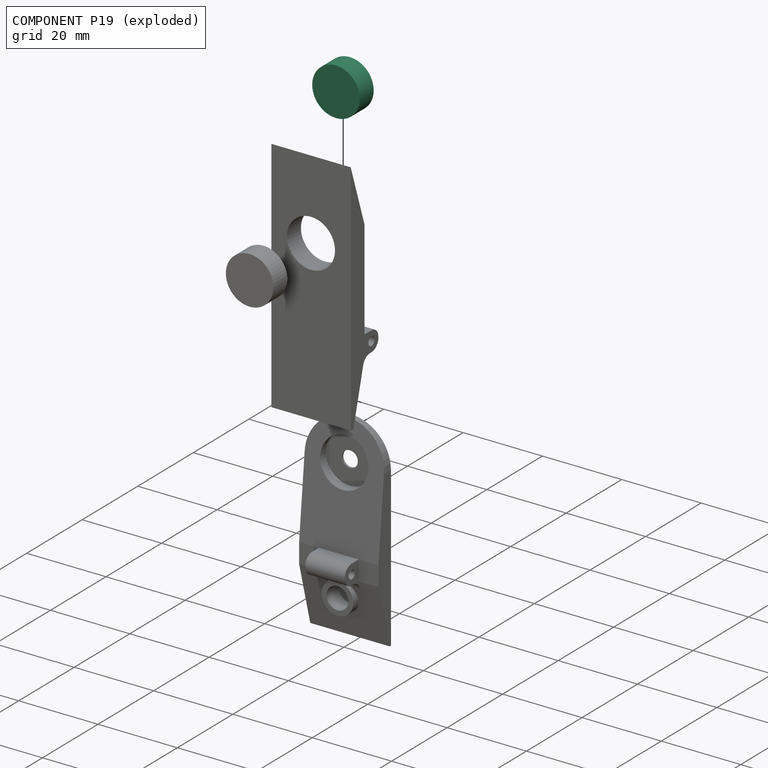
[diagram: component P19 — exploded]
COMPONENT P19 — same part as P2 (CADFS 00642242); its construction recipe is shown at P2.
Held by: FASTENED mate "Fastened 2" to P6; FASTENED mate "Fastened 2" to P6.
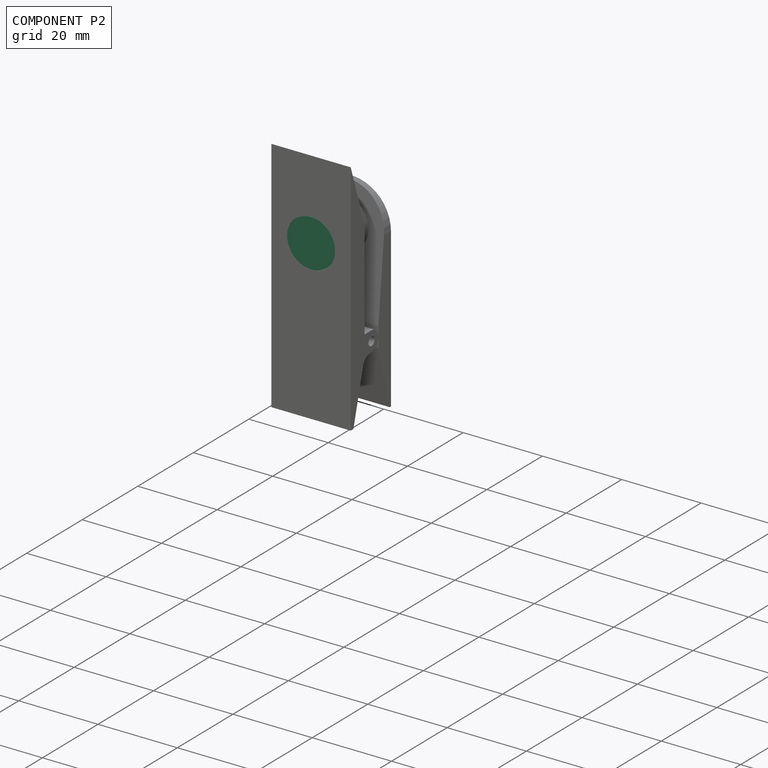
[diagram: component P2 — assembled]
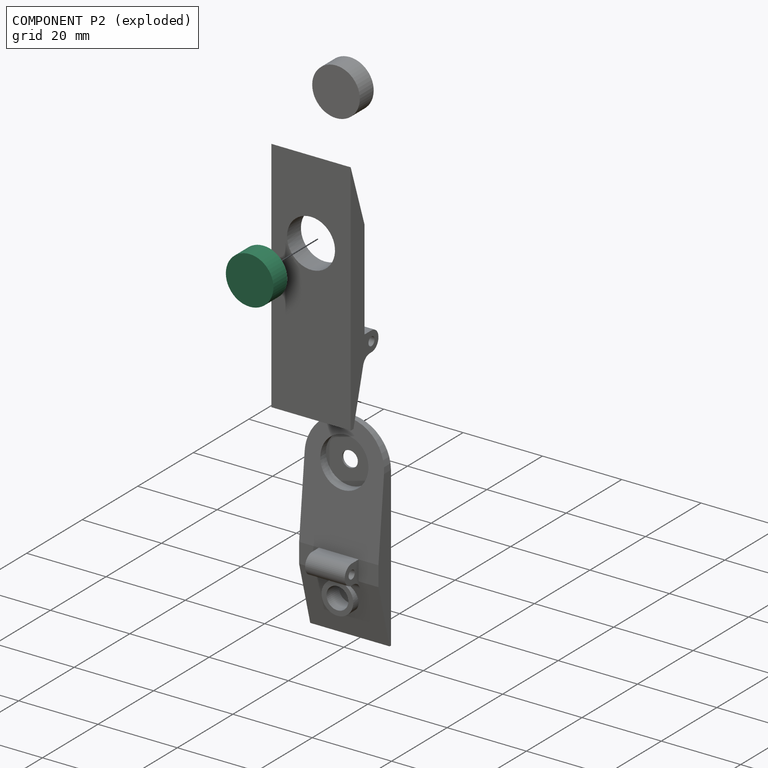
[diagram: component P2 — exploded]
COMPONENT P2 — recipe-attached (CADFS 00642242, mesh-verified: the recipe's output STEP matches this component's geometry to below the mesh-comparison resolution (tessellation chordal tolerance ~0.0265 mm)).
Held by: FASTENED mate "Fastened 1" to P20; FASTENED mate "Fastened 1" to P20.
Construction recipe (FeatureScript — the CAD program that rebuilds this solid; sketch coordinates are in the units given by the * unit suffixes, e.g. mm):

FeatureScript 1511;
import(path : "onshape/std/geometry.fs", version : "1511.0");
import(path : "onshape/std/common.fs", version : "1511.0");
const mm = millimeter;
const VERTEX = EntityType.VERTEX;
const EDGE = EntityType.EDGE;
const FACE = EntityType.FACE;
const BODY = EntityType.BODY;
function v(x, y){return vector(x, y);}
function OD(order){return orderDisambiguation(order);}
function OSD(set){return originalSetDisambiguation(set);}
function TD(topology){return topologyDisambiguation(topology);}
function TDD(query){return trueDependencyDisambiguation(query);}
function sQuery(a, b, c) {return sketchEntityQuery(a, b, c);}

annotation { "Feature Type Name" : "Feature", "Feature Type Description" : "" }
export const myFeature = defineFeature(function(context is Context, id is Id, definition is map)
    precondition{}
    {
        {
            var Q0;
            Q0=qCreatedBy(makeId("Top.planeOp"),FACE);
            var sketch = newSketch(context, id + "F0", { "sketchPlane" : qUnion([Q0])});
            skCircle(sketch, "E0", {"center": v(0, 0) * mm, "radius": 6 * mm});
            skSolve(sketch);
        }
        {
            var Q0;
            Q0=makeQuery(id+"F0.imprint","IMPRINT",FACE,{"disambiguationData":[TD([[makeQuery(id+"F0.imprint","IMPRINT",EDGE,{"derivedFrom":sQuery(id+"F0.wireOp",EDGE,"E0")}),1.0]])]});
            extrude(context, id + "F1", {"entities" : qUnion([Q0]), "depth" : 5 * mm, "offsetDistance" : 25 * mm});
        }
    });
PROVENANCE & LICENSES
Assembly (occurrences, transforms, mates, per-part STEP geometry): AutoMate dataset, Zenodo record 7776208, CC0.
Construction recipes: CADFS (HuggingFace VladPyatov/CADFS, CC-BY-4.0, layered over the ABC dataset), FeatureScript reconstruction programs keyed by ABC model id.
Join: ABC meta listings map ABC model id -> Onshape documentId; within a shared document, parts are matched by geometric signature (bounding-box dims + volume at 0.1% relative tolerance, exact B-rep face/solid counts).
Verification: 15 of this assembly's 24 components carry a recipe attachment, and every attachment is mesh-verified: the CADFS STEP and the AutoMate member STEP were compared as meshes in their shared local frame (symmetric sampled-point-to-mesh distance); worst across the 15 attachments: below the mesh-comparison resolution (tessellation chordal tolerance ~0.273 mm) on a 182 mm part.
Renders: orthographic iso camera (az 35 / el 25); the floor grid conveys scale (grid pitch printed in each image; no ruler). In the exploded view each component is displaced by its stored offset vector: the offsets alone carry the explosion direction (mate normal/axis signs are not orientation cues and do not encode it), and separation distances are assigned per mate-chain, not proportionally to assembly-order depth.
